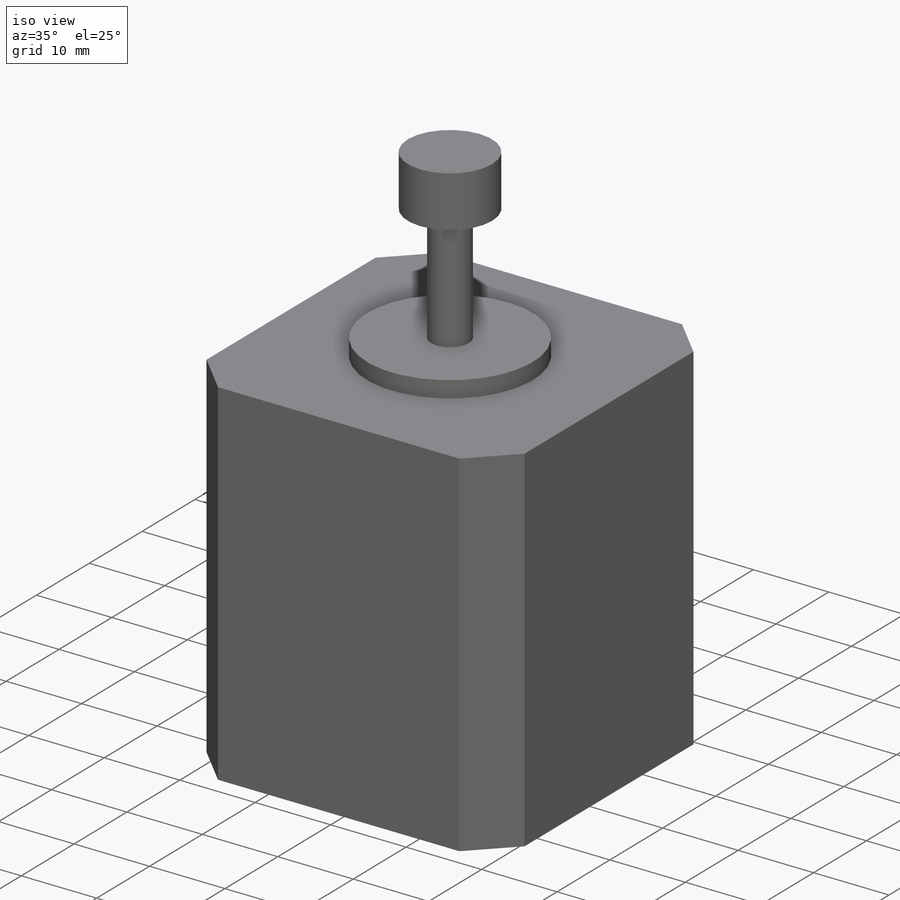
[diagram: iso view]
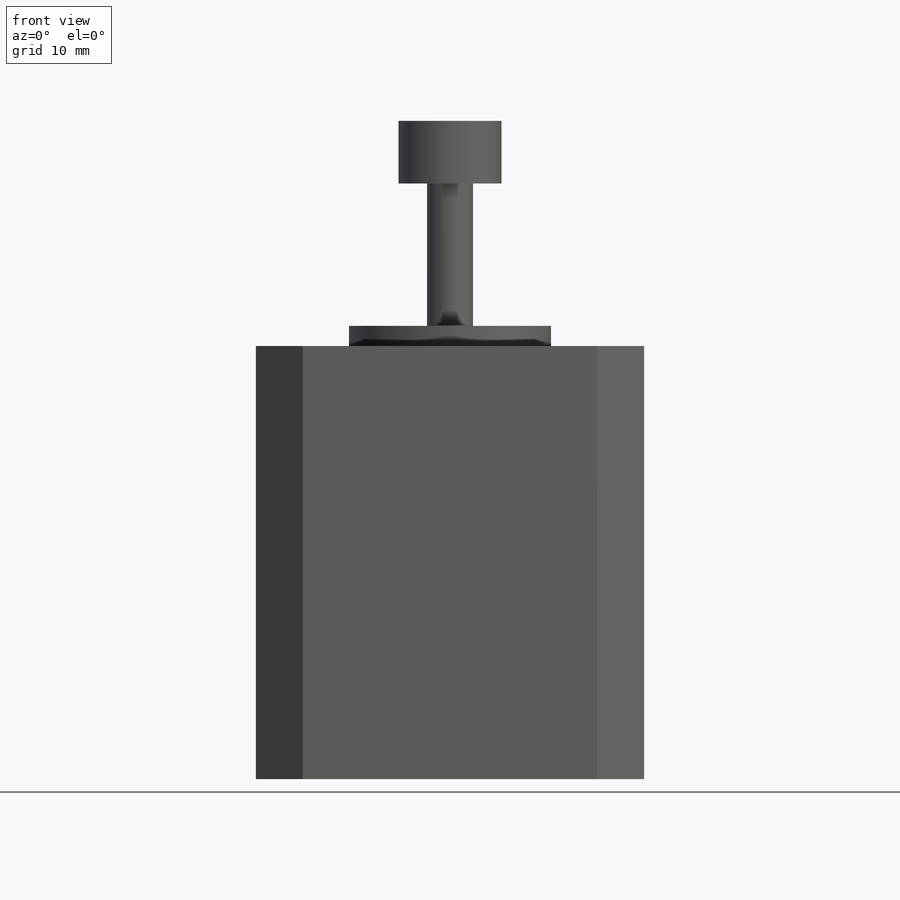
[diagram: front view]
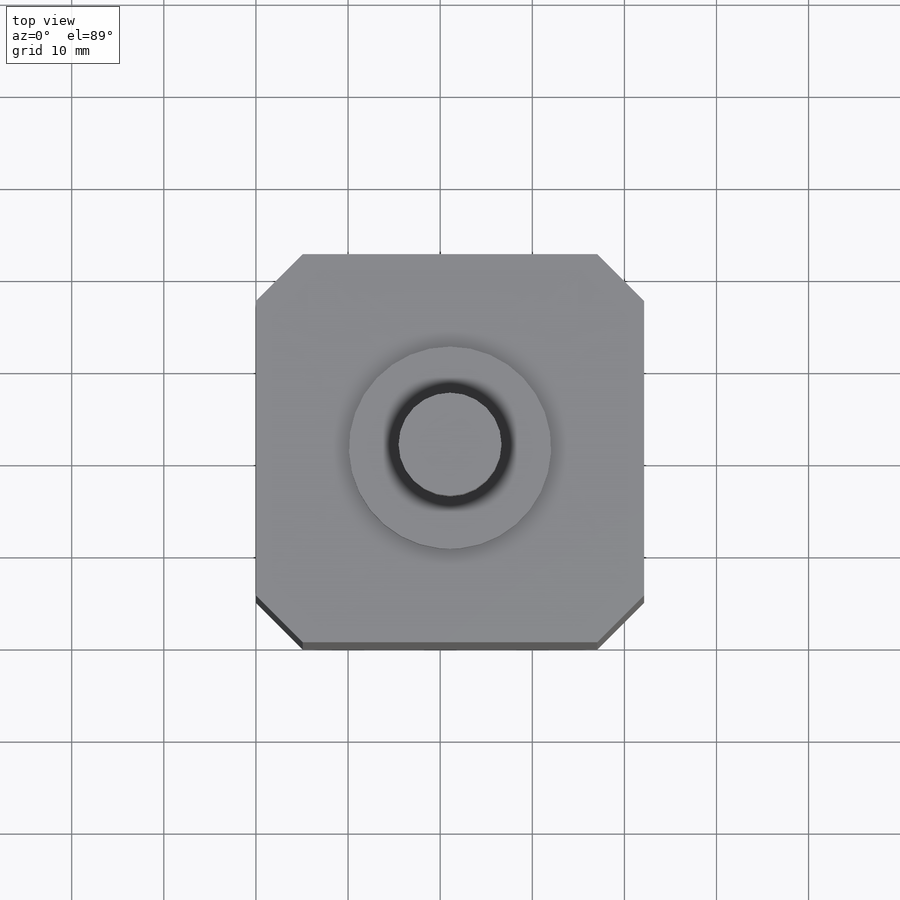
[diagram: top view]
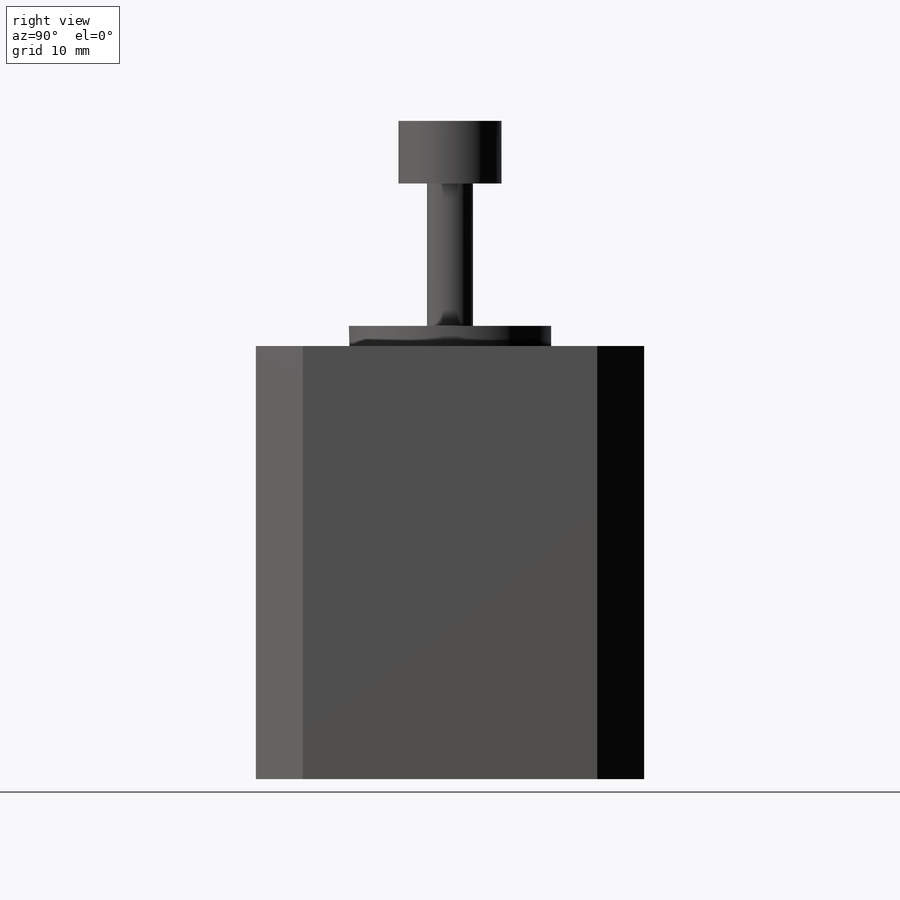
[diagram: right view]
SOLIDWORKS PART (.sldprt)
format: sldprt  version: not decoded by parser v0  size: 169,984 bytes
history: native  units: mm
features: sketch x5, extrude x4, chamfer x4, material x1 + 1 further entry (+12 scaffold rows collapsed)
feature tree (27):
  scaffold x12  (default folders/planes/origin — collapsed)
  material  "Material <not specified>"
  "Annotations"  RD1=31.9786mm
  sketch  "Sketch1"
  extrude  "Boss-Extrude1"  Depth=47.0281mm
  sketch  "Sketch2"  dims[D1=21.9583mm]
  extrude  "Boss-Extrude2"  Depth=2.1717mm
  sketch  "Sketch3"  dims[D1=4.9911mm]
  extrude  "Boss-Extrude3"  Depth=15.4686mm
  chamfer  "Chamfer1"  Distance=5.08mm Angle=45deg
  chamfer  "Chamfer2"  Distance=5.08mm Angle=45deg
  chamfer  "Chamfer3"  Distance=5.08mm Angle=45deg
  chamfer  "Chamfer4"  Distance=5.08mm Angle=45deg
  sketch  "Sketch4"
  sketch  "Sketch5"  dims[D1=~9.076088mm]
  extrude  "Boss-Extrude4"  Depth=6.7945mm
decode coverage: 11 of 13 modeling features carry decoded parameters; 1 rows unclassified (native names shown)
note: ~ marks probable driven/reference dimensions
note: suppression state not decoded; provenance and decode notes live in map.json
